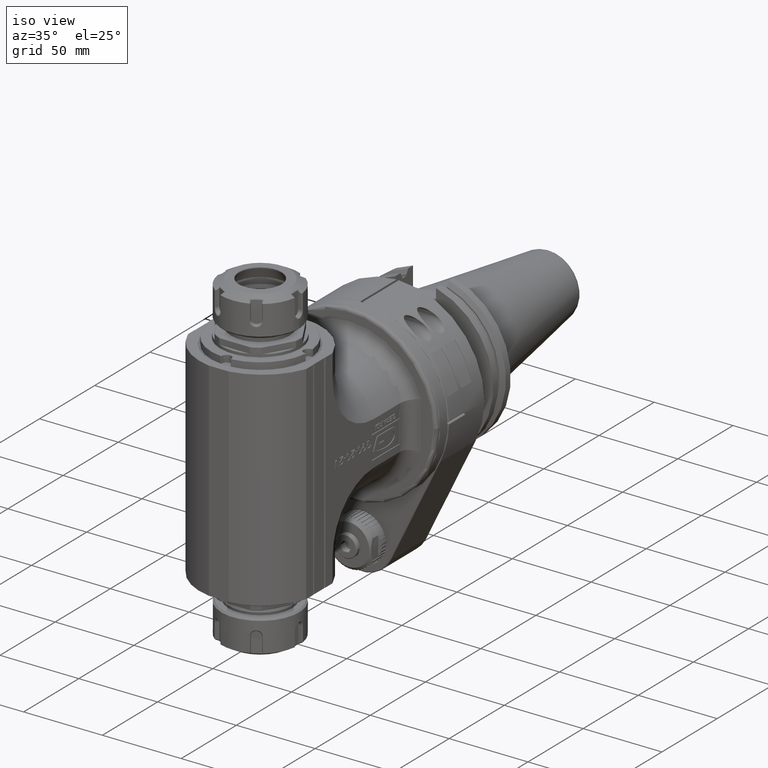
[diagram: clean part render]
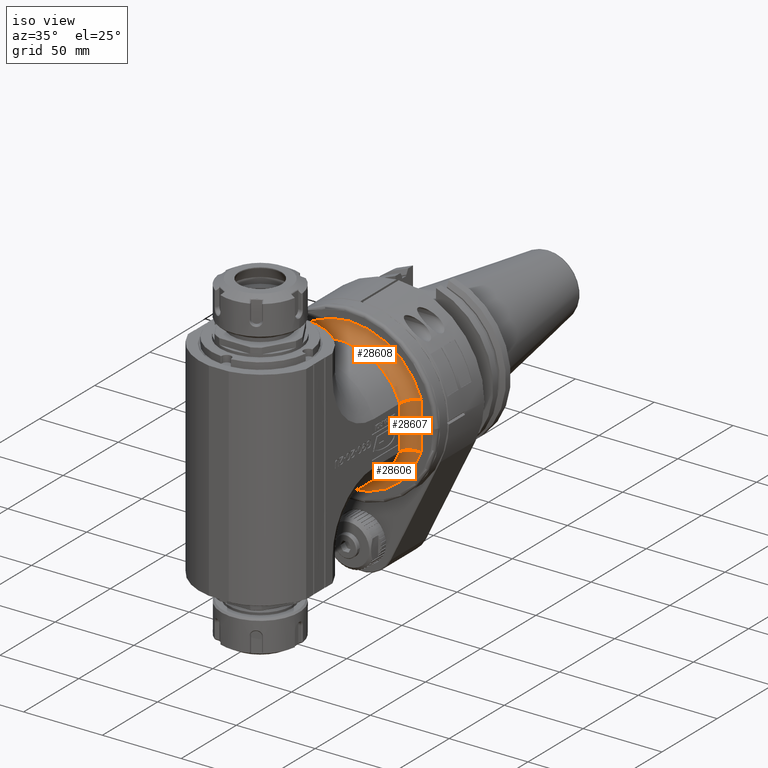
[diagram: same view with one multi-face feature highlighted, each face labeled with its STEP entity id]
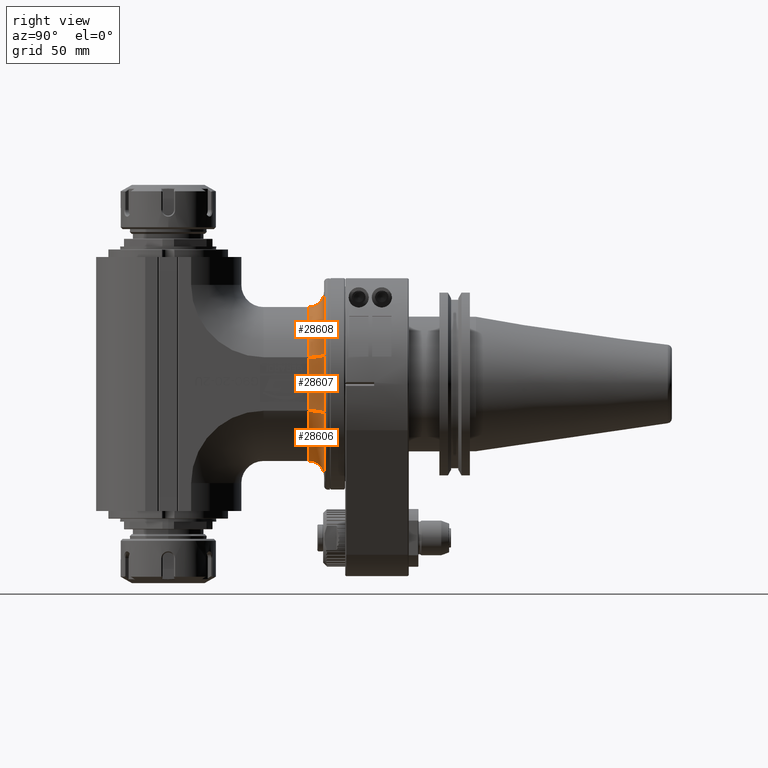
[diagram: same view with one multi-face feature highlighted, each face labeled with its STEP entity id]
A machine part, iso view. The highlighted faces form ONE feature: a constant-radius fillet chain: 3 tangent blend faces with common blend radius 8 mm. The faces share edges in the B-rep.
A second angle (right view) of the same feature is appended — it is thin or edge-on in the first view.
Their STEP definitions:
[1] entity #28606 (Torus):
#1281=TOROIDAL_SURFACE('',#30700,48.,8.);
#1579=B_SPLINE_CURVE_WITH_KNOTS('',3,(#44163,#44164,#44165,#44166,#44167,
#44168,#44169,#44170,#44171,#44172,#44173,#44174,#44175,#44176),
 .UNSPECIFIED.,.F.,.F.,(4,2,2,2,2,2,4),(-0.00140371422171799,1.09168316747565E-14,
0.320694362612665,0.63977494666516,0.954286276001006,1.26403336837094,1.26862021422531),
 .UNSPECIFIED.);
#1580=B_SPLINE_CURVE_WITH_KNOTS('',3,(#44178,#44179,#44180,#44181,#44182,
#44183,#44184,#44185,#44186,#44187,#44188,#44189,#44190,#44191),
 .UNSPECIFIED.,.F.,.F.,(4,2,2,2,2,2,4),(1.26781653330391,1.27240305403051,
1.58212819070615,1.89661722664597,2.21567519342155,2.53634682436839,2.53775043909114),
 .UNSPECIFIED.);
#2679=CIRCLE('',#30699,40.);
#2680=CIRCLE('',#30701,48.);
#4028=FACE_OUTER_BOUND('',#5638,.T.);
#5638=EDGE_LOOP('',(#21479,#21480,#21481,#21482));
#12702=VERTEX_POINT('',#43667);
#12944=VERTEX_POINT('',#44158);
#12945=VERTEX_POINT('',#44162);
#12946=VERTEX_POINT('',#44177);
#16098=EDGE_CURVE('',#12944,#12702,#2679,.T.);
#16099=EDGE_CURVE('',#12945,#12702,#1579,.T.);
#16100=EDGE_CURVE('',#12944,#12946,#1580,.T.);
#16101=EDGE_CURVE('',#12945,#12946,#2680,.T.);
#21479=ORIENTED_EDGE('',*,*,#16099,.T.);
#21480=ORIENTED_EDGE('',*,*,#16098,.F.);
#21481=ORIENTED_EDGE('',*,*,#16100,.T.);
#21482=ORIENTED_EDGE('',*,*,#16101,.F.);
#28606=ADVANCED_FACE('',(#4028),#1281,.F.);
#30699=AXIS2_PLACEMENT_3D('',#44160,#35045,#35046);
#30700=AXIS2_PLACEMENT_3D('',#44161,#35047,#35048);
#30701=AXIS2_PLACEMENT_3D('',#44192,#35049,#35050);
#35045=DIRECTION('center_axis',(0.,-1.,0.));
#35046=DIRECTION('ref_axis',(-0.937499999999992,0.,-0.347985272676897));
#35047=DIRECTION('center_axis',(0.,-1.,0.));
#35048=DIRECTION('ref_axis',(0.999959975381746,0.,-0.00894693436537241));
#35049=DIRECTION('center_axis',(0.,1.,0.));
#35050=DIRECTION('ref_axis',(0.947916666666669,0.,-0.31851843440459));
#43667=CARTESIAN_POINT('',(37.5,73.,-13.91941090708));
#44158=CARTESIAN_POINT('',(-37.5,73.,-13.91941090708));
#44160=CARTESIAN_POINT('Origin',(0.,73.,0.));
#44161=CARTESIAN_POINT('Origin',(0.,73.,0.));
#44162=CARTESIAN_POINT('',(45.5,81.,-15.28888485142));
#44163=CARTESIAN_POINT('Ctrl Pts',(45.4999999999999,81.0000000000001,-15.2888848514207));
#44164=CARTESIAN_POINT('Ctrl Pts',(45.4953822795886,81.0000000000001,-15.2881297733924));
#44165=CARTESIAN_POINT('Ctrl Pts',(45.4907645685782,80.9999960018731,-15.2873746409488));
#44166=CARTESIAN_POINT('Ctrl Pts',(44.4311821203483,80.9981611828088,-15.1140887084495));
#44167=CARTESIAN_POINT('Ctrl Pts',(43.3863536417785,80.7876742774235,-14.9401788032522));
#44168=CARTESIAN_POINT('Ctrl Pts',(41.4427234400485,79.9744305380111,-14.611314754712));
#44169=CARTESIAN_POINT('Ctrl Pts',(40.5605662090085,79.380893486421,-14.4592402579848));
#44170=CARTESIAN_POINT('Ctrl Pts',(39.0854335720318,77.8923894164136,-14.2018832560321));
#44171=CARTESIAN_POINT('Ctrl Pts',(38.5024505638805,77.0158768558988,-14.0984856166693));
#44172=CARTESIAN_POINT('Ctrl Pts',(37.711500667133,75.0974702303911,-13.9575211104084));
#44173=CARTESIAN_POINT('Ctrl Pts',(37.5060434499451,74.0777194625514,-13.9204963409478));
#44174=CARTESIAN_POINT('Ctrl Pts',(37.5000437546546,73.030554452751,-13.9194187656887));
#44175=CARTESIAN_POINT('Ctrl Pts',(37.5,73.0152760696116,-13.9194109070751));
#44176=CARTESIAN_POINT('Ctrl Pts',(37.5,73.,-13.9194109070751));
#44177=CARTESIAN_POINT('',(-45.5,81.,-15.28888485142));
#44178=CARTESIAN_POINT('Ctrl Pts',(-37.5,73.,-13.9194109070751));
#44179=CARTESIAN_POINT('Ctrl Pts',(-37.5,73.0152760696116,-13.9194109070751));
#44180=CARTESIAN_POINT('Ctrl Pts',(-37.5000437546546,73.030554452751,-13.9194187656887));
#44181=CARTESIAN_POINT('Ctrl Pts',(-37.5060434499451,74.0777194625514,-13.9204963409478));
#44182=CARTESIAN_POINT('Ctrl Pts',(-37.711500667133,75.0974702303911,-13.9575211104084));
#44183=CARTESIAN_POINT('Ctrl Pts',(-38.5024505638805,77.0158768558988,-14.0984856166693));
#44184=CARTESIAN_POINT('Ctrl Pts',(-39.0854335720318,77.8923894164136,-14.201883256032));
#44185=CARTESIAN_POINT('Ctrl Pts',(-40.5605662090085,79.380893486421,-14.4592402579848));
#44186=CARTESIAN_POINT('Ctrl Pts',(-41.4427234400484,79.974430538011,-14.611314754712));
#44187=CARTESIAN_POINT('Ctrl Pts',(-43.3863536417785,80.7876742774235,-14.9401788032523));
#44188=CARTESIAN_POINT('Ctrl Pts',(-44.4311821203483,80.9981611828088,-15.1140887084495));
#44189=CARTESIAN_POINT('Ctrl Pts',(-45.4907645685782,80.9999960018731,-15.2873746409488));
#44190=CARTESIAN_POINT('Ctrl Pts',(-45.4953822795886,81.,-15.2881297733924));
#44191=CARTESIAN_POINT('Ctrl Pts',(-45.4999999999999,81.,-15.2888848514207));
#44192=CARTESIAN_POINT('Origin',(0.,81.,0.));
[2] entity #28607 (Cylinder):
#1579=B_SPLINE_CURVE_WITH_KNOTS('',3,(#44163,#44164,#44165,#44166,#44167,
#44168,#44169,#44170,#44171,#44172,#44173,#44174,#44175,#44176),
 .UNSPECIFIED.,.F.,.F.,(4,2,2,2,2,2,4),(-0.00140371422171799,1.09168316747565E-14,
0.320694362612665,0.63977494666516,0.954286276001006,1.26403336837094,1.26862021422531),
 .UNSPECIFIED.);
#1581=B_SPLINE_CURVE_WITH_KNOTS('',3,(#44196,#44197,#44198,#44199,#44200,
#44201,#44202,#44203,#44204,#44205,#44206,#44207,#44208,#44209),
 .UNSPECIFIED.,.F.,.F.,(4,2,2,2,2,2,4),(1.26781653332699,1.27240305404369,
1.58212819072498,1.89661722667049,2.2156751934519,2.53634682441397,2.53775043913676),
 .UNSPECIFIED.);
#3413=CYLINDRICAL_SURFACE('',#30702,8.);
#4029=FACE_OUTER_BOUND('',#5639,.T.);
#5639=EDGE_LOOP('',(#21483,#21484,#21485,#21486));
#7532=LINE('',#43670,#10074);
#7773=LINE('',#44195,#10315);
#10074=VECTOR('',#34788,27.83882181415);
#10315=VECTOR('',#35053,30.57776970284);
#12702=VERTEX_POINT('',#43667);
#12703=VERTEX_POINT('',#43669);
#12945=VERTEX_POINT('',#44162);
#12947=VERTEX_POINT('',#44194);
#15852=EDGE_CURVE('',#12702,#12703,#7532,.T.);
#16099=EDGE_CURVE('',#12945,#12702,#1579,.T.);
#16102=EDGE_CURVE('',#12945,#12947,#7773,.T.);
#16103=EDGE_CURVE('',#12703,#12947,#1581,.T.);
#21483=ORIENTED_EDGE('',*,*,#15852,.F.);
#21484=ORIENTED_EDGE('',*,*,#16099,.F.);
#21485=ORIENTED_EDGE('',*,*,#16102,.T.);
#21486=ORIENTED_EDGE('',*,*,#16103,.F.);
#28607=ADVANCED_FACE('',(#4029),#3413,.F.);
#30702=AXIS2_PLACEMENT_3D('',#44193,#35051,#35052);
#34788=DIRECTION('',(0.,0.,1.));
#35051=DIRECTION('center_axis',(0.,0.,-1.));
#35052=DIRECTION('ref_axis',(1.,0.,0.));
#35053=DIRECTION('',(0.,0.,1.));
#43667=CARTESIAN_POINT('',(37.5,73.,-13.91941090708));
#43669=CARTESIAN_POINT('',(37.5,73.,13.91941090708));
#43670=CARTESIAN_POINT('',(37.5,73.,-13.91941090708));
#44162=CARTESIAN_POINT('',(45.5,81.,-15.28888485142));
#44163=CARTESIAN_POINT('Ctrl Pts',(45.4999999999999,81.0000000000001,-15.2888848514207));
#44164=CARTESIAN_POINT('Ctrl Pts',(45.4953822795886,81.0000000000001,-15.2881297733924));
#44165=CARTESIAN_POINT('Ctrl Pts',(45.4907645685782,80.9999960018731,-15.2873746409488));
#44166=CARTESIAN_POINT('Ctrl Pts',(44.4311821203483,80.9981611828088,-15.1140887084495));
#44167=CARTESIAN_POINT('Ctrl Pts',(43.3863536417785,80.7876742774235,-14.9401788032522));
#44168=CARTESIAN_POINT('Ctrl Pts',(41.4427234400485,79.9744305380111,-14.611314754712));
#44169=CARTESIAN_POINT('Ctrl Pts',(40.5605662090085,79.380893486421,-14.4592402579848));
#44170=CARTESIAN_POINT('Ctrl Pts',(39.0854335720318,77.8923894164136,-14.2018832560321));
#44171=CARTESIAN_POINT('Ctrl Pts',(38.5024505638805,77.0158768558988,-14.0984856166693));
#44172=CARTESIAN_POINT('Ctrl Pts',(37.711500667133,75.0974702303911,-13.9575211104084));
#44173=CARTESIAN_POINT('Ctrl Pts',(37.5060434499451,74.0777194625514,-13.9204963409478));
#44174=CARTESIAN_POINT('Ctrl Pts',(37.5000437546546,73.030554452751,-13.9194187656887));
#44175=CARTESIAN_POINT('Ctrl Pts',(37.5,73.0152760696116,-13.9194109070751));
#44176=CARTESIAN_POINT('Ctrl Pts',(37.5,73.,-13.9194109070751));
#44193=CARTESIAN_POINT('Origin',(45.5,73.,-79.2));
#44194=CARTESIAN_POINT('',(45.5,81.,15.28888485142));
#44195=CARTESIAN_POINT('',(45.5,81.,-15.28888485142));
#44196=CARTESIAN_POINT('Ctrl Pts',(37.5,73.,13.9194109070751));
#44197=CARTESIAN_POINT('Ctrl Pts',(37.5,73.0152760695784,13.9194109070751));
#44198=CARTESIAN_POINT('Ctrl Pts',(37.5000437546544,73.0305544526846,13.9194187656887));
#44199=CARTESIAN_POINT('Ctrl Pts',(37.5060434499317,74.0777194624514,13.9204963409454));
#44200=CARTESIAN_POINT('Ctrl Pts',(37.7115006671067,75.0974702302933,13.9575211104037));
#44201=CARTESIAN_POINT('Ctrl Pts',(38.5024505638298,77.0158768558104,14.0984856166603));
#44202=CARTESIAN_POINT('Ctrl Pts',(39.0854335719698,77.8923894163322,14.2018832560211));
#44203=CARTESIAN_POINT('Ctrl Pts',(40.5605662089271,79.3808934863579,14.4592402579707));
#44204=CARTESIAN_POINT('Ctrl Pts',(41.4427234399592,79.9744305379592,14.6113147546967));
#44205=CARTESIAN_POINT('Ctrl Pts',(43.386353641707,80.7876742774083,14.9401788032403));
#44206=CARTESIAN_POINT('Ctrl Pts',(44.4311821202942,80.9981611828087,15.1140887084386));
#44207=CARTESIAN_POINT('Ctrl Pts',(45.4907645685784,80.9999960018731,15.2873746409489));
#44208=CARTESIAN_POINT('Ctrl Pts',(45.4953822795885,81.,15.2881297733924));
#44209=CARTESIAN_POINT('Ctrl Pts',(45.4999999999999,81.,15.2888848514207));
[3] entity #28608 (Torus):
#1282=TOROIDAL_SURFACE('',#30703,48.,8.);
#1581=B_SPLINE_CURVE_WITH_KNOTS('',3,(#44196,#44197,#44198,#44199,#44200,
#44201,#44202,#44203,#44204,#44205,#44206,#44207,#44208,#44209),
 .UNSPECIFIED.,.F.,.F.,(4,2,2,2,2,2,4),(1.26781653332699,1.27240305404369,
1.58212819072498,1.89661722667049,2.2156751934519,2.53634682441397,2.53775043913676),
 .UNSPECIFIED.);
#1582=B_SPLINE_CURVE_WITH_KNOTS('',3,(#44214,#44215,#44216,#44217,#44218,
#44219,#44220,#44221,#44222,#44223,#44224,#44225,#44226,#44227),
 .UNSPECIFIED.,.F.,.F.,(4,2,2,2,2,2,4),(-0.00140371422177577,1.10597295210901E-14,
0.320694362629243,0.639774946688905,0.95428627603175,1.26403336840862,1.26862021425312),
 .UNSPECIFIED.);
#2681=CIRCLE('',#30704,48.);
#2682=CIRCLE('',#30705,40.);
#4030=FACE_OUTER_BOUND('',#5640,.T.);
#5640=EDGE_LOOP('',(#21487,#21488,#21489,#21490));
#12703=VERTEX_POINT('',#43669);
#12947=VERTEX_POINT('',#44194);
#12948=VERTEX_POINT('',#44211);
#12949=VERTEX_POINT('',#44213);
#16103=EDGE_CURVE('',#12703,#12947,#1581,.T.);
#16104=EDGE_CURVE('',#12948,#12947,#2681,.T.);
#16105=EDGE_CURVE('',#12948,#12949,#1582,.T.);
#16106=EDGE_CURVE('',#12703,#12949,#2682,.T.);
#21487=ORIENTED_EDGE('',*,*,#16103,.T.);
#21488=ORIENTED_EDGE('',*,*,#16104,.F.);
#21489=ORIENTED_EDGE('',*,*,#16105,.T.);
#21490=ORIENTED_EDGE('',*,*,#16106,.F.);
#28608=ADVANCED_FACE('',(#4030),#1282,.F.);
#30703=AXIS2_PLACEMENT_3D('',#44210,#35054,#35055);
#30704=AXIS2_PLACEMENT_3D('',#44212,#35056,#35057);
#30705=AXIS2_PLACEMENT_3D('',#44228,#35058,#35059);
#35054=DIRECTION('center_axis',(0.,-1.,0.));
#35055=DIRECTION('ref_axis',(0.999959975381746,0.,-0.00894693436537241));
#35056=DIRECTION('center_axis',(0.,1.,0.));
#35057=DIRECTION('ref_axis',(-0.947916666666669,0.,0.31851843440459));
#35058=DIRECTION('center_axis',(0.,-1.,0.));
#35059=DIRECTION('ref_axis',(0.937499999999992,0.,0.347985272676897));
#43669=CARTESIAN_POINT('',(37.5,73.,13.91941090708));
#44194=CARTESIAN_POINT('',(45.5,81.,15.28888485142));
#44196=CARTESIAN_POINT('Ctrl Pts',(37.5,73.,13.9194109070751));
#44197=CARTESIAN_POINT('Ctrl Pts',(37.5,73.0152760695784,13.9194109070751));
#44198=CARTESIAN_POINT('Ctrl Pts',(37.5000437546544,73.0305544526846,13.9194187656887));
#44199=CARTESIAN_POINT('Ctrl Pts',(37.5060434499317,74.0777194624514,13.9204963409454));
#44200=CARTESIAN_POINT('Ctrl Pts',(37.7115006671067,75.0974702302933,13.9575211104037));
#44201=CARTESIAN_POINT('Ctrl Pts',(38.5024505638298,77.0158768558104,14.0984856166603));
#44202=CARTESIAN_POINT('Ctrl Pts',(39.0854335719698,77.8923894163322,14.2018832560211));
#44203=CARTESIAN_POINT('Ctrl Pts',(40.5605662089271,79.3808934863579,14.4592402579707));
#44204=CARTESIAN_POINT('Ctrl Pts',(41.4427234399592,79.9744305379592,14.6113147546967));
#44205=CARTESIAN_POINT('Ctrl Pts',(43.386353641707,80.7876742774083,14.9401788032403));
#44206=CARTESIAN_POINT('Ctrl Pts',(44.4311821202942,80.9981611828087,15.1140887084386));
#44207=CARTESIAN_POINT('Ctrl Pts',(45.4907645685784,80.9999960018731,15.2873746409489));
#44208=CARTESIAN_POINT('Ctrl Pts',(45.4953822795885,81.,15.2881297733924));
#44209=CARTESIAN_POINT('Ctrl Pts',(45.4999999999999,81.,15.2888848514207));
#44210=CARTESIAN_POINT('Origin',(0.,73.,0.));
#44211=CARTESIAN_POINT('',(-45.5,81.,15.28888485142));
#44212=CARTESIAN_POINT('Origin',(0.,81.,0.));
#44213=CARTESIAN_POINT('',(-37.5,73.,13.91941090708));
#44214=CARTESIAN_POINT('Ctrl Pts',(-45.4999999999999,81.,15.2888848514207));
#44215=CARTESIAN_POINT('Ctrl Pts',(-45.4953822795884,81.,15.2881297733924));
#44216=CARTESIAN_POINT('Ctrl Pts',(-45.4907645685784,80.9999960018731,15.2873746409489));
#44217=CARTESIAN_POINT('Ctrl Pts',(-44.431182120294,80.9981611828087,15.1140887084386));
#44218=CARTESIAN_POINT('Ctrl Pts',(-43.386353641707,80.7876742774082,14.9401788032401));
#44219=CARTESIAN_POINT('Ctrl Pts',(-41.4427234399593,79.9744305379592,14.6113147546966));
#44220=CARTESIAN_POINT('Ctrl Pts',(-40.5605662089271,79.3808934863579,14.4592402579707));
#44221=CARTESIAN_POINT('Ctrl Pts',(-39.0854335719698,77.8923894163322,14.2018832560211));
#44222=CARTESIAN_POINT('Ctrl Pts',(-38.5024505638298,77.0158768558104,14.0984856166603));
#44223=CARTESIAN_POINT('Ctrl Pts',(-37.7115006671067,75.0974702302934,13.9575211104037));
#44224=CARTESIAN_POINT('Ctrl Pts',(-37.5060434499317,74.0777194624514,13.9204963409454));
#44225=CARTESIAN_POINT('Ctrl Pts',(-37.5000437546544,73.0305544526846,13.9194187656887));
#44226=CARTESIAN_POINT('Ctrl Pts',(-37.5,73.0152760695784,13.9194109070751));
#44227=CARTESIAN_POINT('Ctrl Pts',(-37.5,73.,13.9194109070751));
#44228=CARTESIAN_POINT('Origin',(0.,73.,0.));